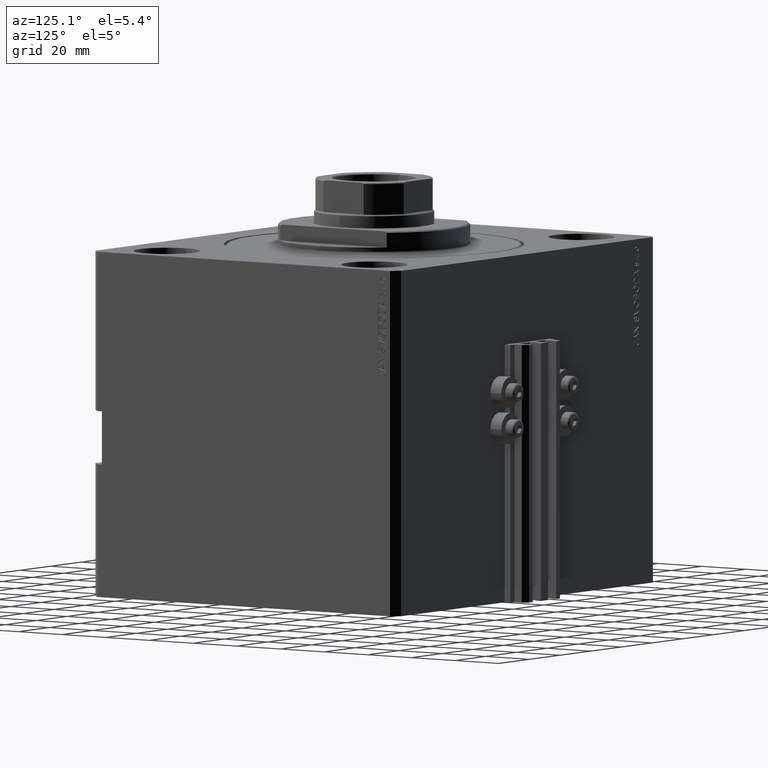
[diagram: clean part render]
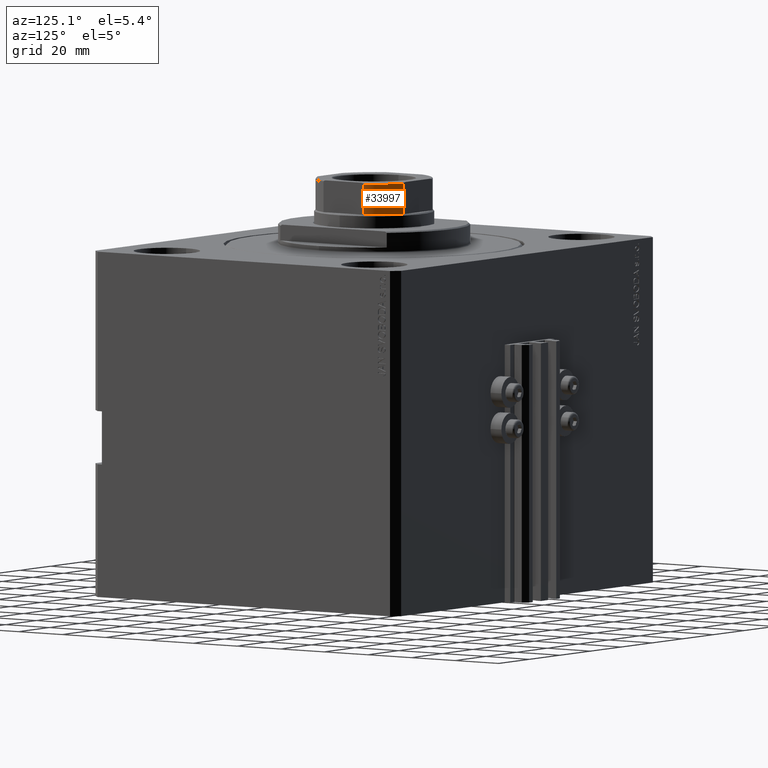
[diagram: same view with one face highlighted and labeled with its STEP entity id]
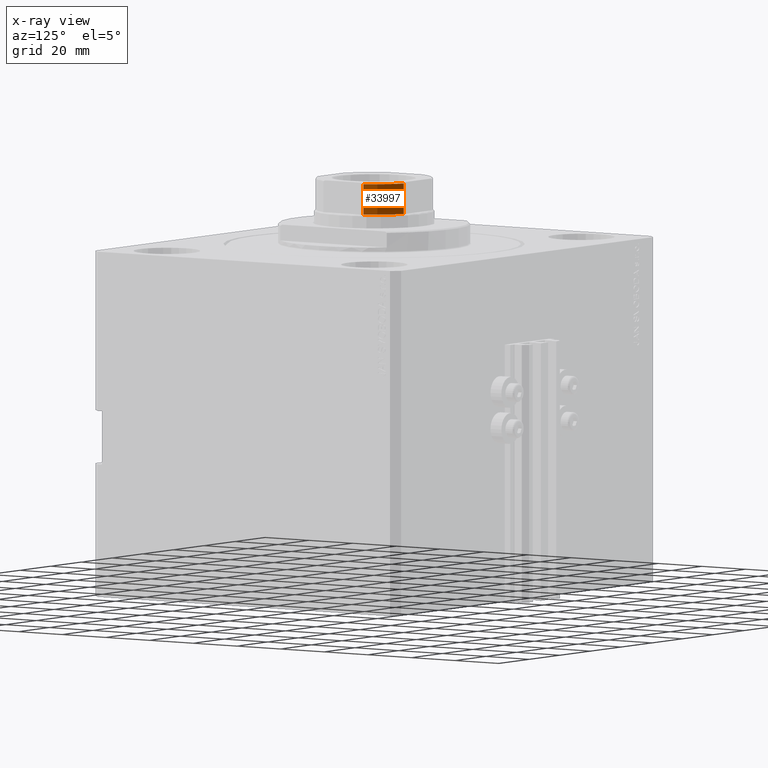
[diagram: x-ray of the same camera — body ghosted, the highlighted face saturated]
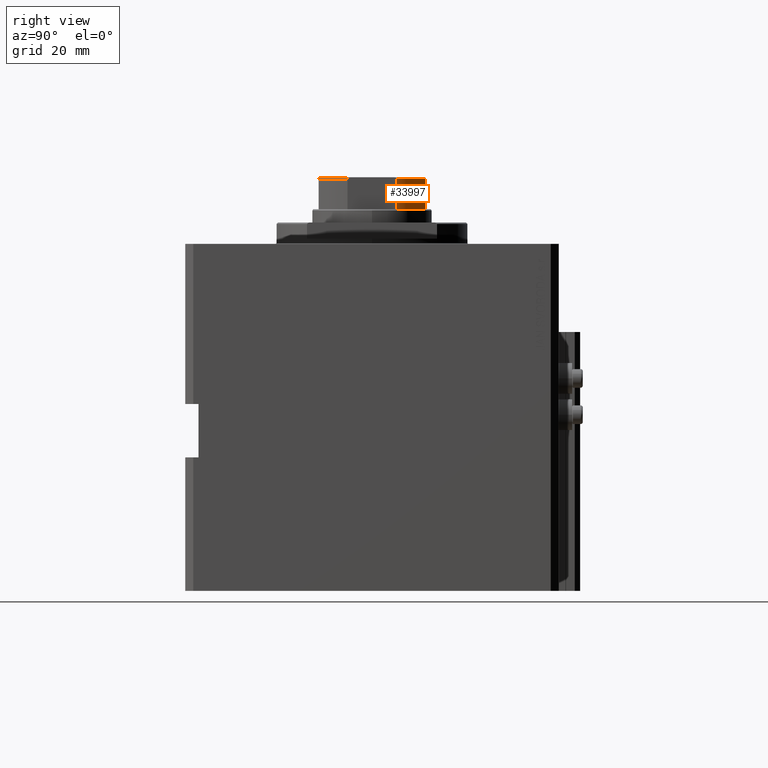
[diagram: same view with one face highlighted and labeled with its STEP entity id]
A machine part, auxiliary view. The second image highlights one B-rep face of the part: STEP entity #33997.
The next image is the same camera in x-ray: the body ghosted, the highlighted face saturated — about 0% of this face is hidden behind the body in this view.
A second angle (right view) of the same face is appended — the face is thin or edge-on in the first view.
In plain terms, the highlighted cylindrical surface (partial cylindrical patch) has radius 22 mm, axis along (0, 0, 1).
Its self-contained STEP definition (entity closure, byte-faithful):
#321 = CYLINDRICAL_SURFACE ( 'NONE', #46900, 22.00000000000000000 ) ;
#480 = CIRCLE ( 'NONE', #32559, 22.00000000000000000 ) ;
#1164 = EDGE_CURVE ( 'NONE', #12369, #35297, #25039, .T. ) ;
#3462 = VECTOR ( 'NONE', #38864, 1000.000000000000000 ) ;
#4441 = ORIENTED_EDGE ( 'NONE', *, *, #31335, .F. ) ;
#4513 = ORIENTED_EDGE ( 'NONE', *, *, #1164, .T. ) ;
#6385 = LINE ( 'NONE', #7351, #38232 ) ;
#7351 = CARTESIAN_POINT ( 'NONE',  ( 19.99999999999999645, 9.165151389911683211, -0.001000000000001000089 ) ) ;
#11731 = CARTESIAN_POINT ( 'NONE',  ( 9.165151389911676105, 20.00000000000000000, 114.1000000000001364 ) ) ;
#12142 = ORIENTED_EDGE ( 'NONE', *, *, #24477, .T. ) ;
#12369 = VERTEX_POINT ( 'NONE', #14131 ) ;
#13270 = CARTESIAN_POINT ( 'NONE',  ( 0.000000000000000000, 0.000000000000000000, 114.1000000000000085 ) ) ;
#13765 = DIRECTION ( 'NONE',  ( 0.000000000000000000, 0.000000000000000000, 1.000000000000000000 ) ) ;
#14131 = CARTESIAN_POINT ( 'NONE',  ( 19.99999999999999645, 9.165151389911683211, 114.1000000000001364 ) ) ;
#14419 = ORIENTED_EDGE ( 'NONE', *, *, #43161, .T. ) ;
#14698 = CARTESIAN_POINT ( 'NONE',  ( 9.165151389911676105, 20.00000000000000000, 125.6000000000000227 ) ) ;
#15289 = DIRECTION ( 'NONE',  ( 1.000000000000000000, 0.000000000000000000, 0.000000000000000000 ) ) ;
#17526 = DIRECTION ( 'NONE',  ( 0.000000000000000000, -0.000000000000000000, -1.000000000000000000 ) ) ;
#20846 = DIRECTION ( 'NONE',  ( 1.000000000000000000, 0.000000000000000000, 0.000000000000000000 ) ) ;
#21311 = CARTESIAN_POINT ( 'NONE',  ( 19.99999999999999645, 9.165151389911683211, 125.6000000000000227 ) ) ;
#21431 = DIRECTION ( 'NONE',  ( 1.000000000000000000, 0.000000000000000000, 0.000000000000000000 ) ) ;
#23853 = VERTEX_POINT ( 'NONE', #14698 ) ;
#24477 = EDGE_CURVE ( 'NONE', #23853, #38489, #480, .T. ) ;
#25039 = CIRCLE ( 'NONE', #39904, 22.00000000000012790 ) ;
#30214 = FACE_OUTER_BOUND ( 'NONE', #33254, .T. ) ;
#31335 = EDGE_CURVE ( 'NONE', #12369, #38489, #6385, .T. ) ;
#32559 = AXIS2_PLACEMENT_3D ( 'NONE', #44451, #17526, #21431 ) ;
#33254 = EDGE_LOOP ( 'NONE', ( #14419, #12142, #4441, #4513 ) ) ;
#33997 = ADVANCED_FACE ( 'NONE', ( #30214 ), #321, .T. ) ;
#34612 = DIRECTION ( 'NONE',  ( -0.000000000000000000, -0.000000000000000000, 1.000000000000000000 ) ) ;
#35297 = VERTEX_POINT ( 'NONE', #11731 ) ;
#36253 = DIRECTION ( 'NONE',  ( -0.000000000000000000, -0.000000000000000000, 1.000000000000000000 ) ) ;
#38232 = VECTOR ( 'NONE', #36253, 1000.000000000000000 ) ;
#38489 = VERTEX_POINT ( 'NONE', #21311 ) ;
#38864 = DIRECTION ( 'NONE',  ( -0.000000000000000000, -0.000000000000000000, 1.000000000000000000 ) ) ;
#39106 = LINE ( 'NONE', #45982, #3462 ) ;
#39904 = AXIS2_PLACEMENT_3D ( 'NONE', #13270, #13765, #20846 ) ;
#41717 = CARTESIAN_POINT ( 'NONE',  ( 0.000000000000000000, 0.000000000000000000, -0.001000000000001000089 ) ) ;
#43161 = EDGE_CURVE ( 'NONE', #35297, #23853, #39106, .T. ) ;
#44451 = CARTESIAN_POINT ( 'NONE',  ( 0.000000000000000000, 0.000000000000000000, 125.6000000000000227 ) ) ;
#45982 = CARTESIAN_POINT ( 'NONE',  ( 9.165151389911676105, 20.00000000000000000, -0.001000000000001000089 ) ) ;
#46900 = AXIS2_PLACEMENT_3D ( 'NONE', #41717, #34612, #15289 ) ;